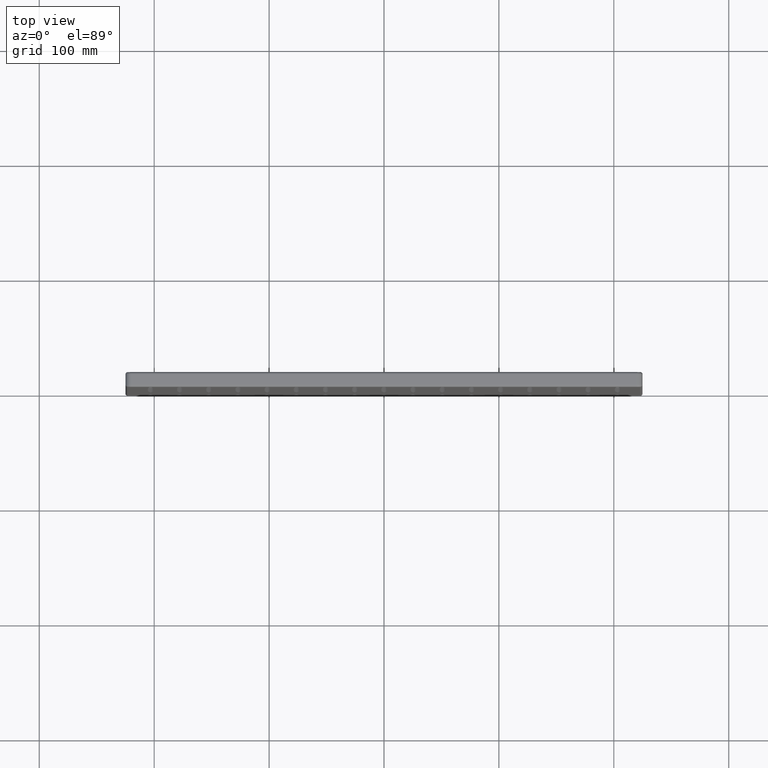
[diagram: clean part render]
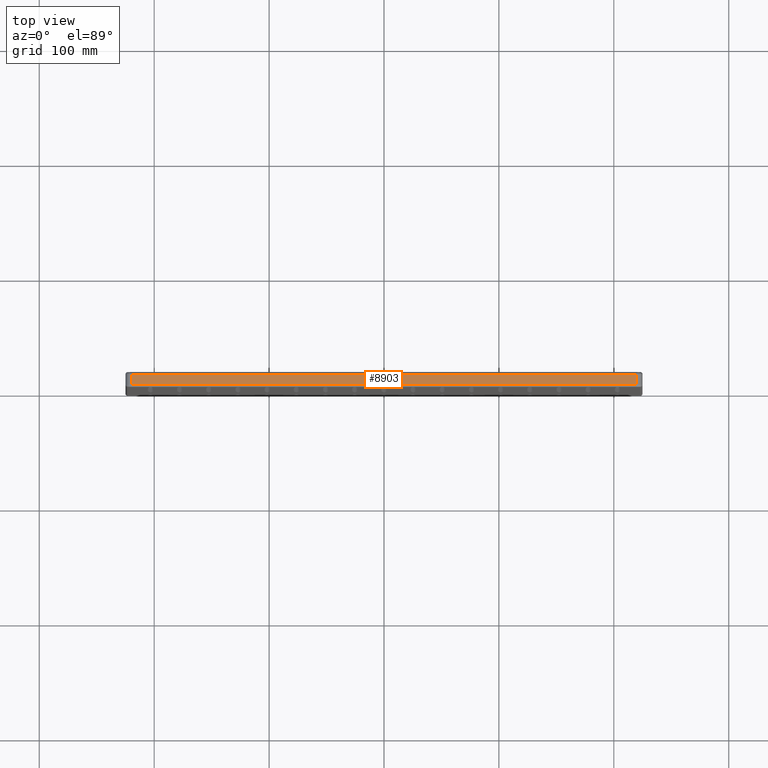
[diagram: same view with one face highlighted and labeled with its STEP entity id]
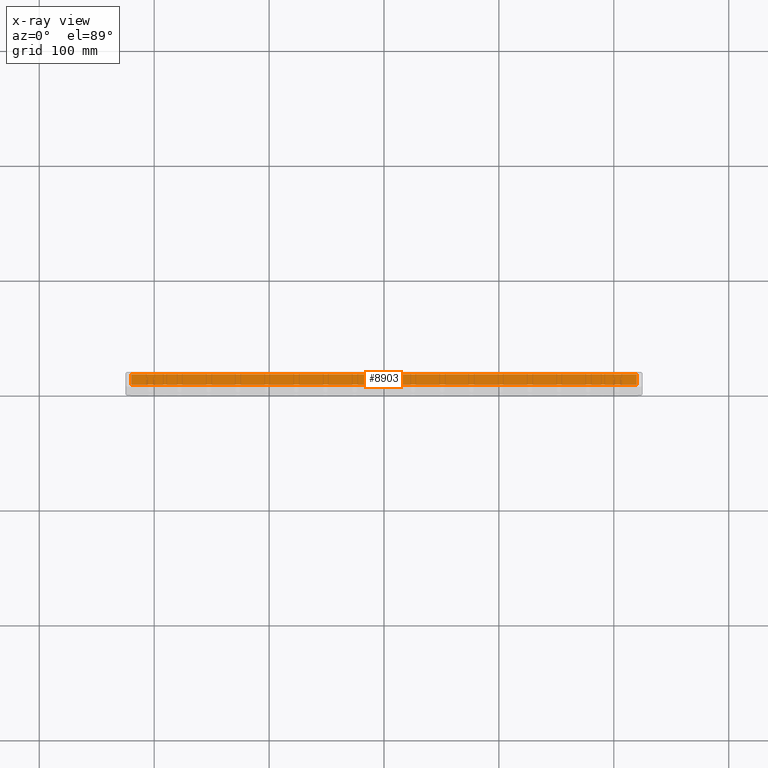
[diagram: x-ray of the same camera — body ghosted, the highlighted face saturated]
A machine part, top view. The second image highlights one B-rep face of the part: STEP entity #8903.
The next image is the same camera in x-ray: the body ghosted, the highlighted face saturated — about 0% of this face is hidden behind the body in this view.
In plain terms, the highlighted planar face has unit normal (0, 0, -1).
Its self-contained STEP definition (entity closure, byte-faithful):
#271 = LINE ( 'NONE', #15366, #5233 ) ;
#989 = FACE_OUTER_BOUND ( 'NONE', #14077, .T. ) ;
#1007 = LINE ( 'NONE', #22349, #19380 ) ;
#2806 = CARTESIAN_POINT ( 'NONE',  ( -220.0000000000000300, 13.00000000000000000, 224.9999999999999700 ) ) ;
#4841 = DIRECTION ( 'NONE',  ( 0.0000000000000000000, 0.0000000000000000000, -1.000000000000000000 ) ) ;
#5233 = VECTOR ( 'NONE', #6403, 1000.000000000000000 ) ;
#6150 = ORIENTED_EDGE ( 'NONE', *, *, #13353, .T. ) ;
#6403 = DIRECTION ( 'NONE',  ( -1.000000000000000000, -0.0000000000000000000, -0.0000000000000000000 ) ) ;
#6625 = DIRECTION ( 'NONE',  ( -1.000000000000000000, 0.0000000000000000000, -0.0000000000000000000 ) ) ;
#7224 = VERTEX_POINT ( 'NONE', #7869 ) ;
#7815 = ORIENTED_EDGE ( 'NONE', *, *, #19501, .T. ) ;
#7869 = CARTESIAN_POINT ( 'NONE',  ( -220.0000000000000300, 11.00000000000000000, 224.9999999999999700 ) ) ;
#8024 = DIRECTION ( 'NONE',  ( -0.0000000000000000000, -1.000000000000000000, -0.0000000000000000000 ) ) ;
#8766 = EDGE_CURVE ( 'NONE', #21189, #12383, #1007, .T. ) ;
#8903 = ADVANCED_FACE ( 'NONE', ( #989 ), #20613, .F. ) ;
#9725 = CARTESIAN_POINT ( 'NONE',  ( 220.0000000000000300, 2.000000000000003600, 224.9999999999999100 ) ) ;
#12143 = VERTEX_POINT ( 'NONE', #15970 ) ;
#12383 = VERTEX_POINT ( 'NONE', #9725 ) ;
#12387 = AXIS2_PLACEMENT_3D ( 'NONE', #2806, #4841, #6625 ) ;
#13269 = EDGE_CURVE ( 'NONE', #12143, #12383, #14447, .T. ) ;
#13353 = EDGE_CURVE ( 'NONE', #21189, #7224, #271, .T. ) ;
#13474 = LINE ( 'NONE', #18526, #14597 ) ;
#13697 = CARTESIAN_POINT ( 'NONE',  ( 220.0000000000000300, 11.00000000000000000, 224.9999999999999100 ) ) ;
#14077 = EDGE_LOOP ( 'NONE', ( #7815, #21316, #22976, #6150 ) ) ;
#14447 = LINE ( 'NONE', #20187, #18608 ) ;
#14597 = VECTOR ( 'NONE', #14941, 1000.000000000000000 ) ;
#14941 = DIRECTION ( 'NONE',  ( -0.0000000000000000000, -1.000000000000000000, -0.0000000000000000000 ) ) ;
#15366 = CARTESIAN_POINT ( 'NONE',  ( -220.0000000000000300, 11.00000000000000000, 224.9999999999999700 ) ) ;
#15970 = CARTESIAN_POINT ( 'NONE',  ( -220.0000000000000300, 2.000000000000003600, 224.9999999999999700 ) ) ;
#18526 = CARTESIAN_POINT ( 'NONE',  ( -220.0000000000000300, 13.00000000000000000, 224.9999999999999700 ) ) ;
#18596 = DIRECTION ( 'NONE',  ( 1.000000000000000000, -0.0000000000000000000, 0.0000000000000000000 ) ) ;
#18608 = VECTOR ( 'NONE', #18596, 1000.000000000000000 ) ;
#19380 = VECTOR ( 'NONE', #8024, 1000.000000000000000 ) ;
#19501 = EDGE_CURVE ( 'NONE', #7224, #12143, #13474, .T. ) ;
#20187 = CARTESIAN_POINT ( 'NONE',  ( -220.0000000000000300, 2.000000000000000000, 224.9999999999999700 ) ) ;
#20613 = PLANE ( 'NONE',  #12387 ) ;
#21189 = VERTEX_POINT ( 'NONE', #13697 ) ;
#21316 = ORIENTED_EDGE ( 'NONE', *, *, #13269, .T. ) ;
#22349 = CARTESIAN_POINT ( 'NONE',  ( 220.0000000000000300, 13.00000000000000000, 224.9999999999999100 ) ) ;
#22976 = ORIENTED_EDGE ( 'NONE', *, *, #8766, .F. ) ;